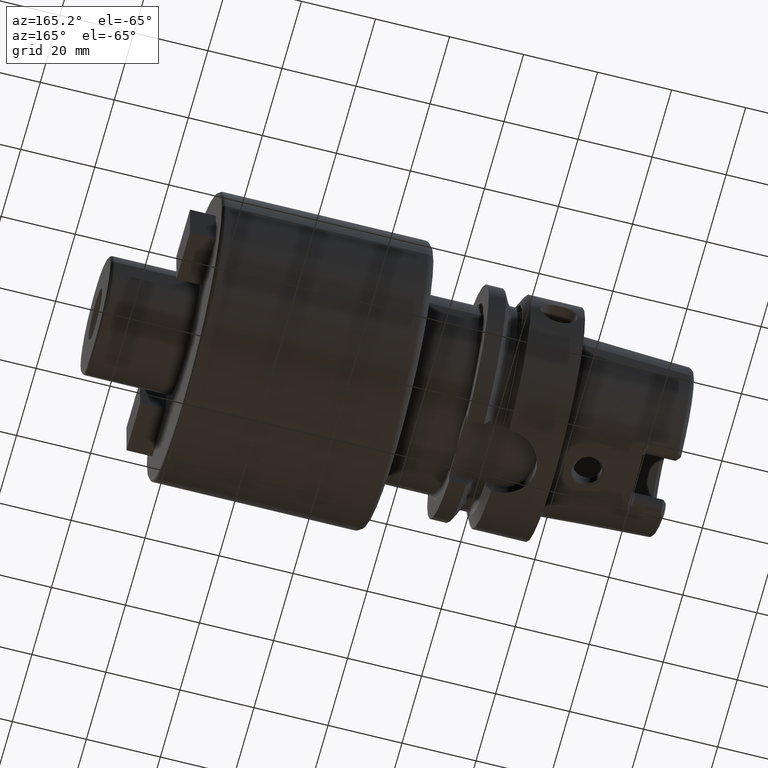
[diagram: clean part render]
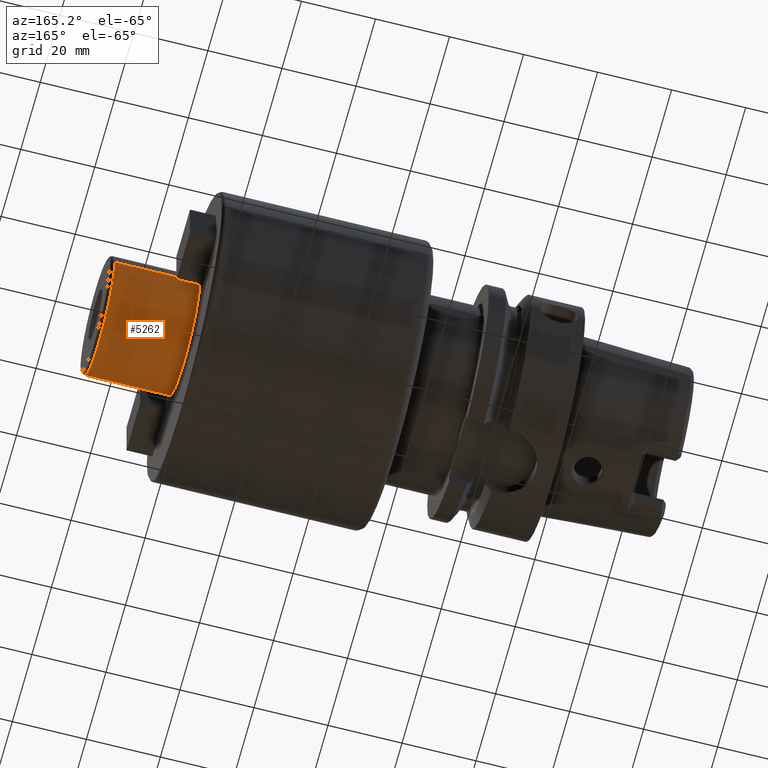
[diagram: same view with one face highlighted and labeled with its STEP entity id]
A machine part, auxiliary view. The second image highlights one B-rep face of the part: STEP entity #5262.
In plain terms, the highlighted cylindrical surface (partial cylindrical patch) has radius 16 mm, axis along (1, 0, 0).
Its self-contained STEP definition (entity closure, byte-faithful):
#1574=CARTESIAN_POINT('',(1.E2,0.E0,0.E0));
#1575=DIRECTION('',(-1.E0,0.E0,0.E0));
#1576=DIRECTION('',(0.E0,1.E0,0.E0));
#1577=AXIS2_PLACEMENT_3D('',#1574,#1575,#1576);
#1636=CARTESIAN_POINT('',(1.23E2,0.E0,0.E0));
#1637=DIRECTION('',(-1.E0,0.E0,0.E0));
#1638=DIRECTION('',(0.E0,1.E0,0.E0));
#1639=AXIS2_PLACEMENT_3D('',#1636,#1637,#1638);
#1641=DIRECTION('',(-1.E0,0.E0,1.032267992532E-14));
#1642=VECTOR('',#1641,2.3E1);
#1643=CARTESIAN_POINT('',(1.23E2,1.6E1,-2.361153483633E-13));
#1644=LINE('',#1643,#1642);
#1645=DIRECTION('',(-1.E0,0.E0,-1.045584753224E-14));
#1646=VECTOR('',#1645,2.3E1);
#1647=CARTESIAN_POINT('',(1.23E2,-1.6E1,2.391782033224E-13));
#1648=LINE('',#1647,#1646);
#3263=CARTESIAN_POINT('',(1.E2,1.6E1,0.E0));
#3264=CARTESIAN_POINT('',(1.E2,-1.6E1,0.E0));
#3265=VERTEX_POINT('',#3263);
#3266=VERTEX_POINT('',#3264);
#3275=CARTESIAN_POINT('',(1.23E2,1.6E1,0.E0));
#3276=CARTESIAN_POINT('',(1.23E2,-1.6E1,0.E0));
#3277=VERTEX_POINT('',#3275);
#3278=VERTEX_POINT('',#3276);
#5251=CARTESIAN_POINT('',(2.11E1,0.E0,0.E0));
#5252=DIRECTION('',(1.E0,0.E0,0.E0));
#5253=DIRECTION('',(0.E0,-1.E0,0.E0));
#5254=AXIS2_PLACEMENT_3D('',#5251,#5252,#5253);
#5255=CYLINDRICAL_SURFACE('',#5254,1.6E1);
#5256=ORIENTED_EDGE('',*,*,#5242,.F.);
#5257=ORIENTED_EDGE('',*,*,#5217,.T.);
#5258=ORIENTED_EDGE('',*,*,#5182,.T.);
#5259=ORIENTED_EDGE('',*,*,#5214,.F.);
#5260=EDGE_LOOP('',(#5256,#5257,#5258,#5259));
#5261=FACE_OUTER_BOUND('',#5260,.F.);
#5262=ADVANCED_FACE('',(#5261),#5255,.T.);
#1578=CIRCLE('',#1577,1.6E1);
#1640=CIRCLE('',#1639,1.6E1);
#5182=EDGE_CURVE('',#3265,#3266,#1578,.T.);
#5214=EDGE_CURVE('',#3278,#3266,#1648,.T.);
#5217=EDGE_CURVE('',#3277,#3265,#1644,.T.);
#5242=EDGE_CURVE('',#3277,#3278,#1640,.T.);